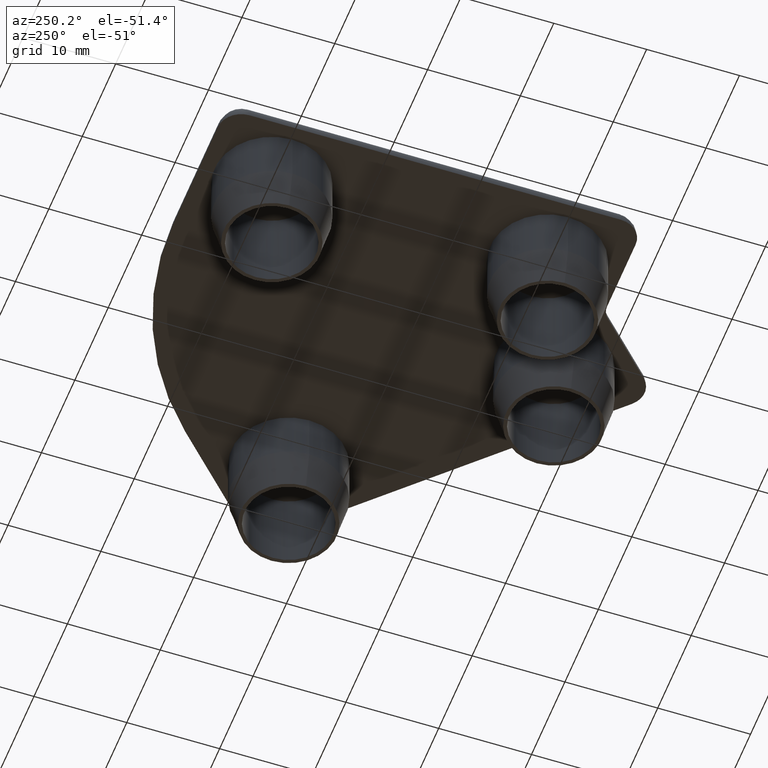
[diagram: clean part render]
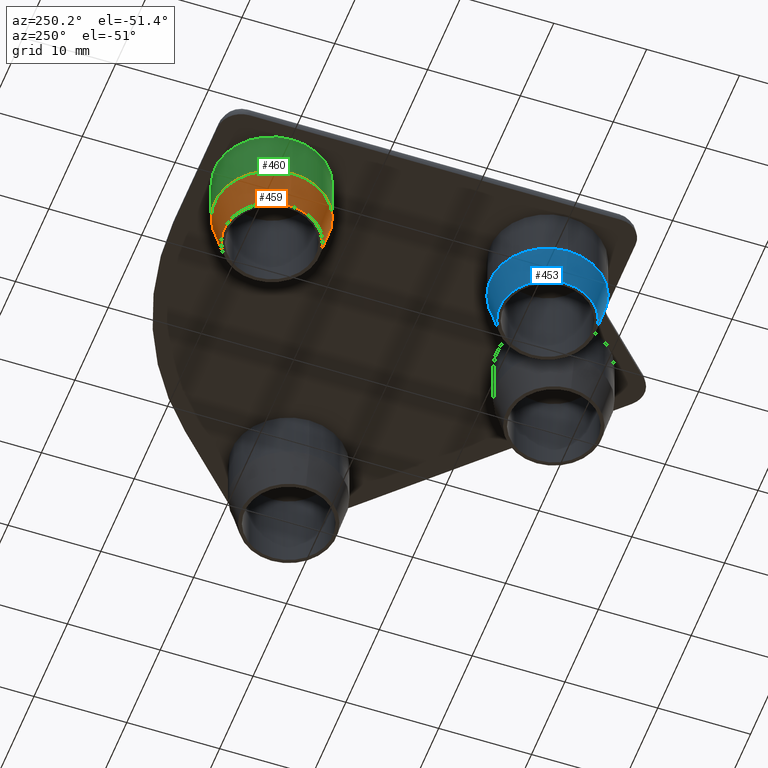
[diagram: same view with three faces highlighted in distinct colors, each labeled with its STEP entity id]
A machine part, auxiliary view with three faces highlighted in distinct colors.
Their STEP definitions:

[orange] entity #459 — the highlighted conical surface has half-angle 14.036 deg.
#59=FACE_OUTER_BOUND('',#95,.T.);
#95=EDGE_LOOP('',(#341,#342,#343,#344));
#133=LINE('',#786,#157);
#157=VECTOR('',#619,5.65);
#185=CIRCLE('',#522,6.15);
#186=CIRCLE('',#523,5.15);
#225=VERTEX_POINT('',#783);
#226=VERTEX_POINT('',#785);
#269=EDGE_CURVE('',#225,#225,#185,.T.);
#270=EDGE_CURVE('',#225,#226,#133,.T.);
#271=EDGE_CURVE('',#226,#226,#186,.T.);
#341=ORIENTED_EDGE('',*,*,#269,.T.);
#342=ORIENTED_EDGE('',*,*,#270,.T.);
#343=ORIENTED_EDGE('',*,*,#271,.T.);
#344=ORIENTED_EDGE('',*,*,#270,.F.);
#451=CONICAL_SURFACE('',#521,5.65,0.244978663126864);
#459=ADVANCED_FACE('',(#59),#451,.T.);
#521=AXIS2_PLACEMENT_3D('',#782,#615,#616);
#522=AXIS2_PLACEMENT_3D('',#784,#617,#618);
#523=AXIS2_PLACEMENT_3D('',#787,#620,#621);
#615=DIRECTION('center_axis',(0.,0.,1.));
#616=DIRECTION('ref_axis',(1.,0.,0.));
#617=DIRECTION('center_axis',(0.,0.,-1.));
#618=DIRECTION('ref_axis',(1.,0.,0.));
#619=DIRECTION('',(0.242535625036333,2.97020476879948E-17,-0.970142500145332));
#620=DIRECTION('center_axis',(0.,0.,1.));
#621=DIRECTION('ref_axis',(1.,0.,0.));
#782=CARTESIAN_POINT('Origin',(-12.7045683265898,16.9541103174842,-7.5));
#783=CARTESIAN_POINT('',(-18.8545683265898,16.9541103174842,-5.5));
#784=CARTESIAN_POINT('Origin',(-12.7045683265898,16.9541103174842,-5.5));
#785=CARTESIAN_POINT('',(-17.8545683265898,16.9541103174842,-9.5));
#786=CARTESIAN_POINT('',(-18.3545683265898,16.9541103174842,-7.5));
#787=CARTESIAN_POINT('Origin',(-12.7045683265898,16.9541103174842,-9.5));

[blue] entity #453 — the highlighted conical surface has half-angle 14.036 deg.
#53=FACE_OUTER_BOUND('',#87,.T.);
#87=EDGE_LOOP('',(#321,#322,#323,#324));
#129=LINE('',#760,#153);
#153=VECTOR('',#587,5.65);
#177=CIRCLE('',#508,6.15);
#178=CIRCLE('',#509,5.15);
#217=VERTEX_POINT('',#757);
#218=VERTEX_POINT('',#759);
#257=EDGE_CURVE('',#217,#217,#177,.T.);
#258=EDGE_CURVE('',#217,#218,#129,.T.);
#259=EDGE_CURVE('',#218,#218,#178,.T.);
#321=ORIENTED_EDGE('',*,*,#257,.T.);
#322=ORIENTED_EDGE('',*,*,#258,.T.);
#323=ORIENTED_EDGE('',*,*,#259,.T.);
#324=ORIENTED_EDGE('',*,*,#258,.F.);
#449=CONICAL_SURFACE('',#507,5.65,0.244978663126864);
#453=ADVANCED_FACE('',(#53),#449,.T.);
#507=AXIS2_PLACEMENT_3D('',#756,#583,#584);
#508=AXIS2_PLACEMENT_3D('',#758,#585,#586);
#509=AXIS2_PLACEMENT_3D('',#761,#588,#589);
#583=DIRECTION('center_axis',(0.,0.,1.));
#584=DIRECTION('ref_axis',(1.,0.,0.));
#585=DIRECTION('center_axis',(0.,0.,-1.));
#586=DIRECTION('ref_axis',(1.,0.,0.));
#587=DIRECTION('',(0.242535625036333,2.97020476879948E-17,-0.970142500145332));
#588=DIRECTION('center_axis',(0.,0.,1.));
#589=DIRECTION('ref_axis',(1.,0.,0.));
#756=CARTESIAN_POINT('Origin',(-12.7045683265362,-12.7458896825157,-7.5));
#757=CARTESIAN_POINT('',(-18.8545683265362,-12.7458896825157,-5.5));
#758=CARTESIAN_POINT('Origin',(-12.7045683265362,-12.7458896825157,-5.5));
#759=CARTESIAN_POINT('',(-17.8545683265362,-12.7458896825157,-9.5));
#760=CARTESIAN_POINT('',(-18.3545683265362,-12.7458896825157,-7.5));
#761=CARTESIAN_POINT('Origin',(-12.7045683265362,-12.7458896825157,-9.5));

[green] entity #460 — the highlighted cylindrical surface (bore or boss wall) has radius 6.15 mm, axis along (0, 0, -1).
#41=CYLINDRICAL_SURFACE('',#524,6.15);
#60=FACE_OUTER_BOUND('',#96,.T.);
#96=EDGE_LOOP('',(#345,#346,#347,#348));
#134=LINE('',#790,#158);
#158=VECTOR('',#624,6.15);
#185=CIRCLE('',#522,6.15);
#187=CIRCLE('',#525,6.15);
#225=VERTEX_POINT('',#783);
#227=VERTEX_POINT('',#789);
#269=EDGE_CURVE('',#225,#225,#185,.T.);
#272=EDGE_CURVE('',#225,#227,#134,.T.);
#273=EDGE_CURVE('',#227,#227,#187,.T.);
#345=ORIENTED_EDGE('',*,*,#269,.F.);
#346=ORIENTED_EDGE('',*,*,#272,.T.);
#347=ORIENTED_EDGE('',*,*,#273,.F.);
#348=ORIENTED_EDGE('',*,*,#272,.F.);
#460=ADVANCED_FACE('',(#60),#41,.T.);
#522=AXIS2_PLACEMENT_3D('',#784,#617,#618);
#524=AXIS2_PLACEMENT_3D('',#788,#622,#623);
#525=AXIS2_PLACEMENT_3D('',#791,#625,#626);
#617=DIRECTION('center_axis',(0.,0.,-1.));
#618=DIRECTION('ref_axis',(1.,0.,0.));
#622=DIRECTION('center_axis',(0.,0.,-1.));
#623=DIRECTION('ref_axis',(1.,0.,0.));
#624=DIRECTION('',(0.,0.,1.));
#625=DIRECTION('center_axis',(0.,0.,1.));
#626=DIRECTION('ref_axis',(1.,0.,0.));
#783=CARTESIAN_POINT('',(-18.8545683265898,16.9541103174842,-5.5));
#784=CARTESIAN_POINT('Origin',(-12.7045683265898,16.9541103174842,-5.5));
#788=CARTESIAN_POINT('Origin',(-12.7045683265898,16.9541103174842,0.));
#789=CARTESIAN_POINT('',(-18.8545683265898,16.9541103174842,0.));
#790=CARTESIAN_POINT('',(-18.8545683265898,16.9541103174842,0.));
#791=CARTESIAN_POINT('Origin',(-12.7045683265898,16.9541103174842,0.));